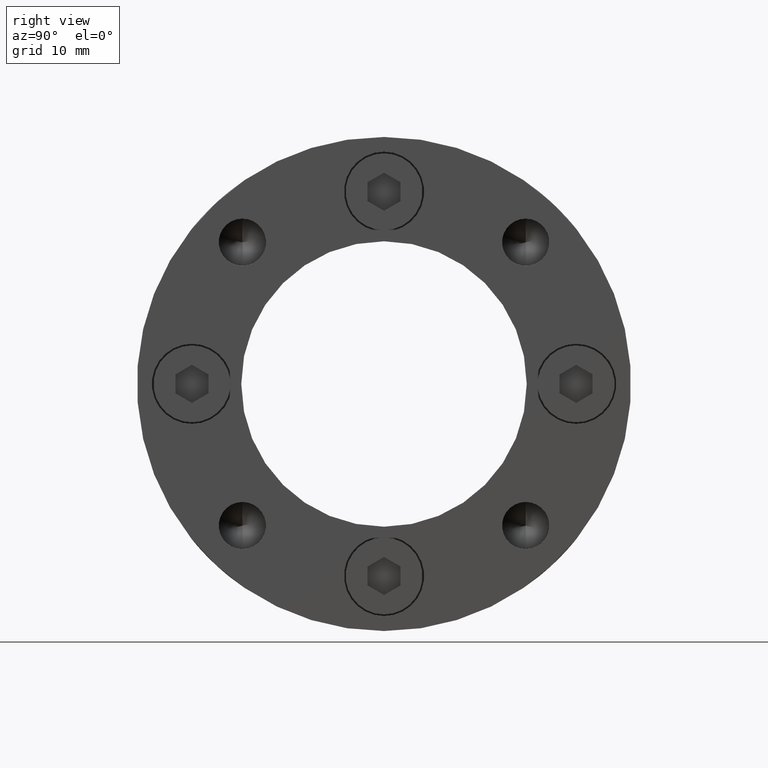
[diagram: clean part render]
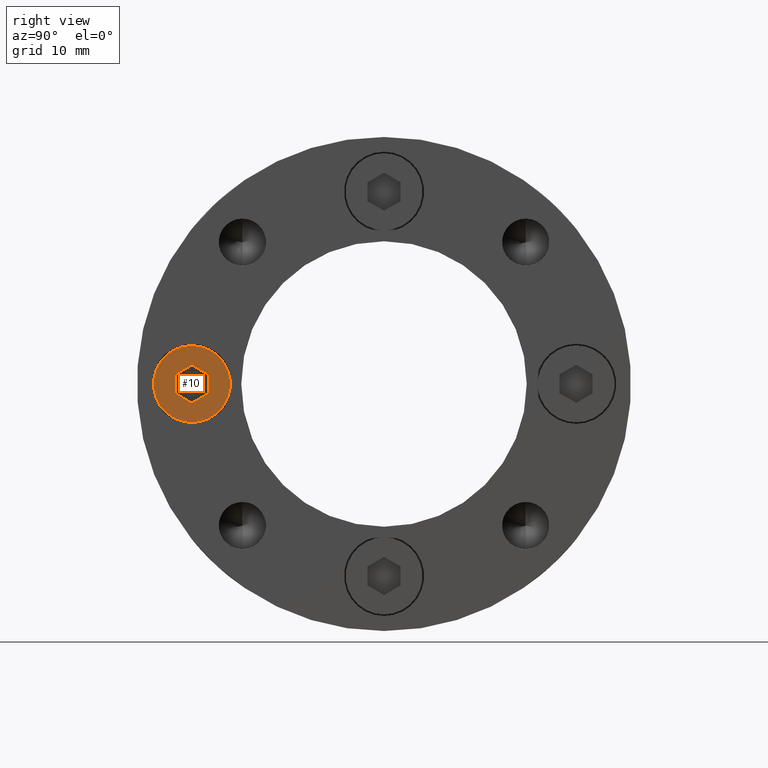
[diagram: same view with one face highlighted and labeled with its STEP entity id]
A machine part, right view. The second image highlights one B-rep face of the part: STEP entity #10.
In plain terms, the highlighted planar face has unit normal (1, 0, 0).
Its self-contained STEP definition (entity closure, byte-faithful):
#10 = ADVANCED_FACE ( 'NONE', ( #2334, #2343 ), #136, .T. ) ;
#133 = CARTESIAN_POINT ( 'NONE',  ( 0.0000000000000000000, 4.000000000000000000, 0.0000000000000000000 ) ) ;
#136 = PLANE ( 'NONE',  #3548 ) ;
#138 = DIRECTION ( 'NONE',  ( 0.0000000000000000000, 1.000000000000000000, 0.0000000000000000000 ) ) ;
#139 = DIRECTION ( 'NONE',  ( 0.0000000000000000000, -0.0000000000000000000, 1.000000000000000000 ) ) ;
#455 = CARTESIAN_POINT ( 'NONE',  ( 1.499999999999999800, 4.000000000000000000, -0.8660254037844389300 ) ) ;
#456 = CARTESIAN_POINT ( 'NONE',  ( -1.084202172485504400E-016, 4.000000000000000000, -1.732050807568877200 ) ) ;
#457 = CARTESIAN_POINT ( 'NONE',  ( 0.0000000000000000000, 4.000000000000000000, -3.500000000000000000 ) ) ;
#462 = CARTESIAN_POINT ( 'NONE',  ( -1.499999999999999100, 4.000000000000000000, 0.8660254037844393700 ) ) ;
#487 = CARTESIAN_POINT ( 'NONE',  ( -1.499999999999999800, 4.000000000000000000, -0.8660254037844386000 ) ) ;
#493 = CARTESIAN_POINT ( 'NONE',  ( 4.286263797015736600E-016, 4.000000000000000000, 3.500000000000000000 ) ) ;
#496 = CARTESIAN_POINT ( 'NONE',  ( 1.500000000000000000, 4.000000000000000000, 0.8660254037844387100 ) ) ;
#501 = CARTESIAN_POINT ( 'NONE',  ( 4.046263255784118500E-016, 4.000000000000000000, 1.732050807568877400 ) ) ;
#649 = EDGE_LOOP ( 'NONE', ( #761, #762, #763, #764, #765, #766 ) ) ;
#657 = EDGE_LOOP ( 'NONE', ( #767, #768 ) ) ;
#761 = ORIENTED_EDGE ( 'NONE', *, *, #3405, .F. ) ;
#762 = ORIENTED_EDGE ( 'NONE', *, *, #3406, .F. ) ;
#763 = ORIENTED_EDGE ( 'NONE', *, *, #3407, .F. ) ;
#764 = ORIENTED_EDGE ( 'NONE', *, *, #3408, .F. ) ;
#765 = ORIENTED_EDGE ( 'NONE', *, *, #3409, .F. ) ;
#766 = ORIENTED_EDGE ( 'NONE', *, *, #3410, .F. ) ;
#767 = ORIENTED_EDGE ( 'NONE', *, *, #3404, .T. ) ;
#768 = ORIENTED_EDGE ( 'NONE', *, *, #3401, .T. ) ;
#1211 = CARTESIAN_POINT ( 'NONE',  ( 0.0000000000000000000, 4.000000000000000000, 0.0000000000000000000 ) ) ;
#1212 = DIRECTION ( 'NONE',  ( 0.0000000000000000000, 1.000000000000000000, 0.0000000000000000000 ) ) ;
#1213 = DIRECTION ( 'NONE',  ( 0.0000000000000000000, 0.0000000000000000000, 1.000000000000000000 ) ) ;
#1214 = CARTESIAN_POINT ( 'NONE',  ( 1.499999999999999800, 4.000000000000000000, -0.8660254037844389300 ) ) ;
#1215 = DIRECTION ( 'NONE',  ( -0.8660254037844387100, 0.0000000000000000000, -0.4999999999999998300 ) ) ;
#1219 = CARTESIAN_POINT ( 'NONE',  ( 4.046263255784118500E-016, 4.000000000000000000, 1.732050807568877400 ) ) ;
#1220 = CARTESIAN_POINT ( 'NONE',  ( 1.500000000000000000, 4.000000000000000000, 0.8660254037844387100 ) ) ;
#1221 = CARTESIAN_POINT ( 'NONE',  ( 0.0000000000000000000, 4.000000000000000000, 0.0000000000000000000 ) ) ;
#1222 = DIRECTION ( 'NONE',  ( 0.0000000000000000000, 1.000000000000000000, 0.0000000000000000000 ) ) ;
#1223 = DIRECTION ( 'NONE',  ( 0.0000000000000000000, 0.0000000000000000000, 1.000000000000000000 ) ) ;
#1224 = CARTESIAN_POINT ( 'NONE',  ( -1.499999999999999100, 4.000000000000000000, 0.8660254037844393700 ) ) ;
#1225 = DIRECTION ( 'NONE',  ( -1.251928832280965900E-016, 0.0000000000000000000, -1.000000000000000000 ) ) ;
#1226 = CARTESIAN_POINT ( 'NONE',  ( -1.499999999999999800, 4.000000000000000000, -0.8660254037844386000 ) ) ;
#1227 = DIRECTION ( 'NONE',  ( 0.8660254037844386000, 0.0000000000000000000, -0.5000000000000001100 ) ) ;
#1228 = CARTESIAN_POINT ( 'NONE',  ( -1.767567020076689400E-016, 4.000000000000000000, -1.732050807568877200 ) ) ;
#1229 = DIRECTION ( 'NONE',  ( 0.8660254037844387100, 0.0000000000000000000, 0.4999999999999998300 ) ) ;
#1230 = DIRECTION ( 'NONE',  ( 3.755786496842897100E-016, 0.0000000000000000000, 1.000000000000000000 ) ) ;
#1232 = DIRECTION ( 'NONE',  ( -0.8660254037844386000, 0.0000000000000000000, 0.5000000000000001100 ) ) ;
#1934 = VERTEX_POINT ( 'NONE', #455 ) ;
#1942 = VERTEX_POINT ( 'NONE', #457 ) ;
#1948 = VERTEX_POINT ( 'NONE', #462 ) ;
#1953 = VERTEX_POINT ( 'NONE', #456 ) ;
#2021 = VERTEX_POINT ( 'NONE', #487 ) ;
#2027 = VERTEX_POINT ( 'NONE', #493 ) ;
#2030 = VERTEX_POINT ( 'NONE', #496 ) ;
#2035 = VERTEX_POINT ( 'NONE', #501 ) ;
#2334 = FACE_BOUND ( 'NONE', #649, .T. ) ;
#2343 = FACE_OUTER_BOUND ( 'NONE', #657, .T. ) ;
#2676 = AXIS2_PLACEMENT_3D ( 'NONE', #1211, #1212, #1213 ) ;
#2678 = AXIS2_PLACEMENT_3D ( 'NONE', #1221, #1222, #1223 ) ;
#2863 = CIRCLE ( 'NONE', #2676, 3.500000000000000000 ) ;
#2865 = LINE ( 'NONE', #1220, #2872 ) ;
#2867 = CIRCLE ( 'NONE', #2678, 3.500000000000000000 ) ;
#2868 = LINE ( 'NONE', #1214, #2870 ) ;
#2869 = LINE ( 'NONE', #1219, #2874 ) ;
#2870 = VECTOR ( 'NONE', #1215, 1000.000000000000000 ) ;
#2871 = LINE ( 'NONE', #1224, #2876 ) ;
#2872 = VECTOR ( 'NONE', #1225, 1000.000000000000000 ) ;
#2873 = LINE ( 'NONE', #1226, #2878 ) ;
#2874 = VECTOR ( 'NONE', #1227, 1000.000000000000000 ) ;
#2875 = LINE ( 'NONE', #1228, #2880 ) ;
#2876 = VECTOR ( 'NONE', #1229, 1000.000000000000100 ) ;
#2878 = VECTOR ( 'NONE', #1230, 1000.000000000000000 ) ;
#2880 = VECTOR ( 'NONE', #1232, 1000.000000000000000 ) ;
#3401 = EDGE_CURVE ( 'NONE', #2027, #1942, #2863, .T. ) ;
#3404 = EDGE_CURVE ( 'NONE', #1942, #2027, #2867, .T. ) ;
#3405 = EDGE_CURVE ( 'NONE', #1934, #1953, #2868, .T. ) ;
#3406 = EDGE_CURVE ( 'NONE', #2030, #1934, #2865, .T. ) ;
#3407 = EDGE_CURVE ( 'NONE', #2035, #2030, #2869, .T. ) ;
#3408 = EDGE_CURVE ( 'NONE', #1948, #2035, #2871, .T. ) ;
#3409 = EDGE_CURVE ( 'NONE', #2021, #1948, #2873, .T. ) ;
#3410 = EDGE_CURVE ( 'NONE', #1953, #2021, #2875, .T. ) ;
#3548 = AXIS2_PLACEMENT_3D ( 'NONE', #133, #138, #139 ) ;